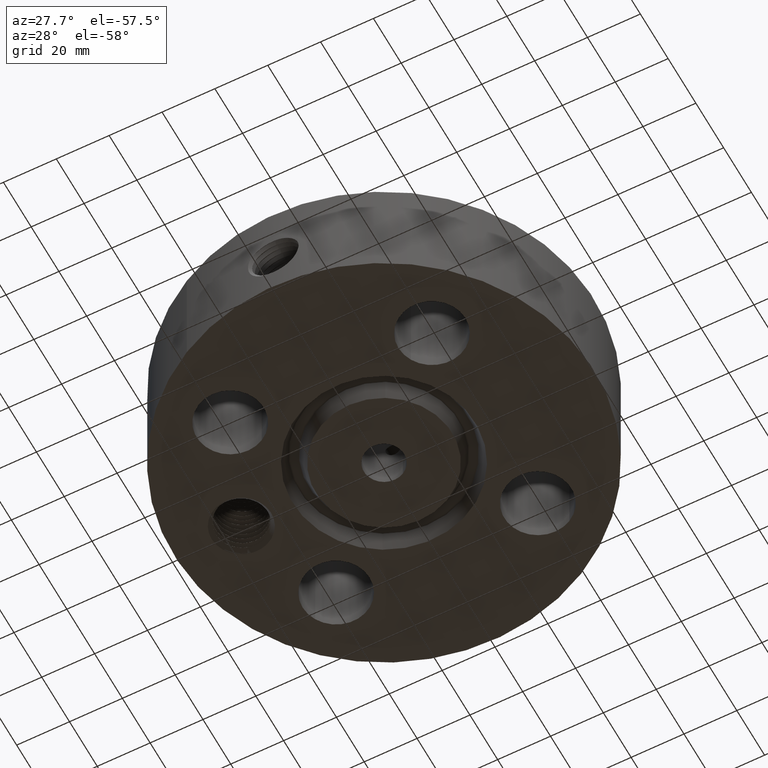
[diagram: clean part render]
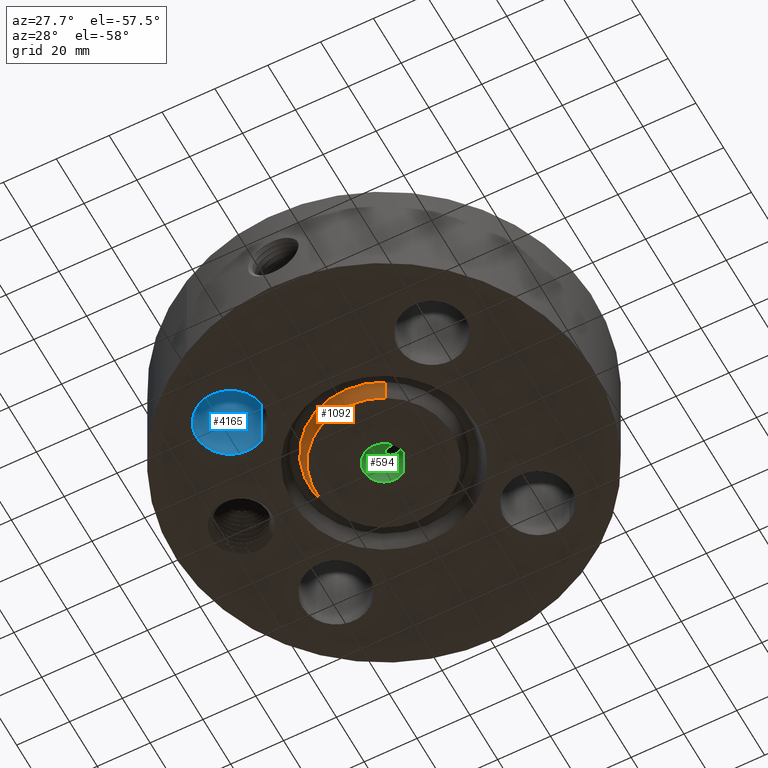
[diagram: same view with three faces highlighted in distinct colors, each labeled with its STEP entity id]
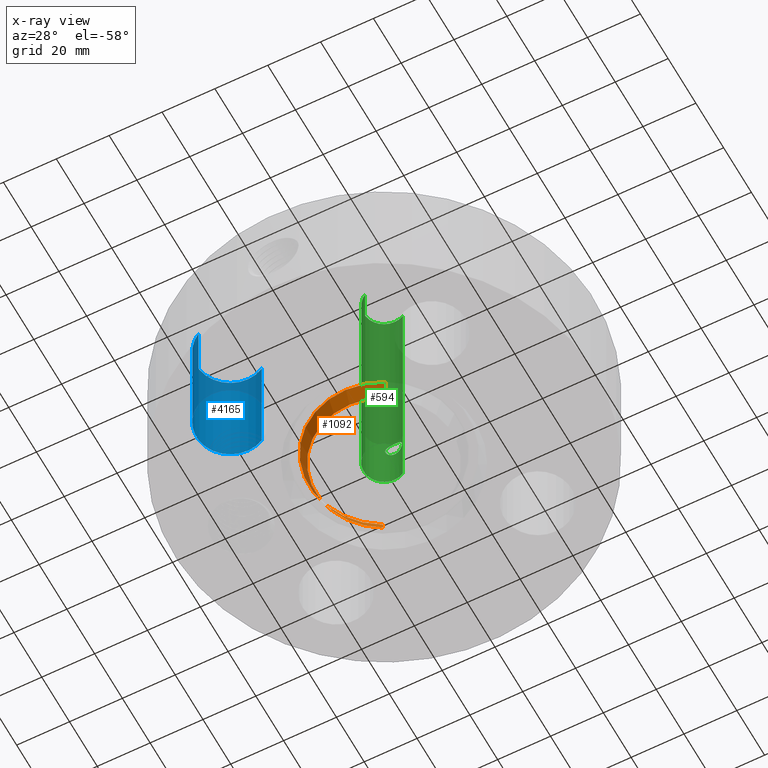
[diagram: x-ray of the same camera — body ghosted, the three highlighted faces saturated]
A machine part, auxiliary view with three faces highlighted in distinct colors.
The next image is the same camera in x-ray (body ghosted, the three faces saturated) — at least one of them is partly hidden behind the body in this view.
Their STEP definitions:

[orange] entity #1092 — the highlighted conical surface has half-angle 23 deg.
#611=AXIS2_PLACEMENT_3D('Circle Axis2P3D',#609,#610,$) ;
#1053=AXIS2_PLACEMENT_3D('Cone Axis2P3D',#1050,#1051,#1052) ;
#1083=AXIS2_PLACEMENT_3D('Circle Axis2P3D',#1081,#1082,$) ;
#604=CARTESIAN_POINT('Vertex',(-0.486856634455,0.891185091603,0.)) ;
#606=CARTESIAN_POINT('Vertex',(0.486856634455,-0.891185091603,0.)) ;
#609=CARTESIAN_POINT('Axis2P3D Location',(-1.39870617276E-016,-3.49676543189E-017,0.)) ;
#1050=CARTESIAN_POINT('Axis2P3D Location',(0.,0.,-0.0600000000002)) ;
#1055=CARTESIAN_POINT('Line Origine',(-0.510434812476,0.934344656971,0.115860966928)) ;
#1059=CARTESIAN_POINT('Vertex',(-0.534012990496,0.977504222339,0.231721933856)) ;
#1066=CARTESIAN_POINT('Vertex',(0.534012990496,-0.977504222339,0.231721933856)) ;
#1069=CARTESIAN_POINT('Line Origine',(0.510434812476,-0.934344656971,0.115860966928)) ;
#1081=CARTESIAN_POINT('Axis2P3D Location',(0.,0.,0.231721933856)) ;
#610=DIRECTION('Axis2P3D Direction',(0.,0.,-0.0393700787402)) ;
#1051=DIRECTION('Axis2P3D Direction',(0.,0.,0.0393700787402)) ;
#1052=DIRECTION('Axis2P3D XDirection',(-0.0188750212049,0.0345504945626,0.)) ;
#1056=DIRECTION('Vector Direction',(-0.00737505833565,0.0134999537303,0.0362403485611)) ;
#1070=DIRECTION('Vector Direction',(0.00737505833565,-0.0134999537303,0.0362403485611)) ;
#1082=DIRECTION('Axis2P3D Direction',(0.,0.,0.0393700787402)) ;
#1057=VECTOR('Line Direction',#1056,0.0393700787402) ;
#1071=VECTOR('Line Direction',#1070,0.0393700787402) ;
#1087=ORIENTED_EDGE('',*,*,#1073,.F.) ;
#1088=ORIENTED_EDGE('',*,*,#1085,.F.) ;
#1089=ORIENTED_EDGE('',*,*,#1061,.T.) ;
#1090=ORIENTED_EDGE('',*,*,#613,.F.) ;
#1092=ADVANCED_FACE('PartBody',(#1091),#1054,.T.) ;
#612=CIRCLE('generated circle',#611,1.0155) ;
#1084=CIRCLE('generated circle',#1083,1.11386012529) ;
#1054=CONICAL_SURFACE('Cone',#1053,0.990031511031,0.401425727959) ;
#613=EDGE_CURVE('',#607,#605,#612,.T.) ;
#1061=EDGE_CURVE('',#1060,#605,#1058,.F.) ;
#1073=EDGE_CURVE('',#1067,#607,#1072,.F.) ;
#1085=EDGE_CURVE('',#1060,#1067,#1084,.T.) ;
#1086=EDGE_LOOP('',(#1087,#1088,#1089,#1090)) ;
#1091=FACE_OUTER_BOUND('',#1086,.T.) ;
#1058=LINE('Line',#1055,#1057) ;
#1072=LINE('Line',#1069,#1071) ;
#605=VERTEX_POINT('',#604) ;
#607=VERTEX_POINT('',#606) ;
#1060=VERTEX_POINT('',#1059) ;
#1067=VERTEX_POINT('',#1066) ;

[blue] entity #4165 — the highlighted cylindrical surface (partial cylindrical patch) has radius 12.7 mm, axis along (0, -0, -1).
#2976=AXIS2_PLACEMENT_3D('Circle Axis2P3D',#2974,#2975,$) ;
#4126=AXIS2_PLACEMENT_3D('Cylinder Axis2P3D',#4123,#4124,#4125) ;
#4156=AXIS2_PLACEMENT_3D('Circle Axis2P3D',#4154,#4155,$) ;
#2974=CARTESIAN_POINT('Axis2P3D Location',(-1.50260191003,-1.50260191003,1.75000000001)) ;
#2978=CARTESIAN_POINT('Vertex',(-1.74231467933,-1.94139319097,1.75000000001)) ;
#2980=CARTESIAN_POINT('Vertex',(-1.26288914072,-1.06381062908,1.75000000001)) ;
#4123=CARTESIAN_POINT('Axis2P3D Location',(-1.50260191003,-1.50260191003,1.74606299213)) ;
#4128=CARTESIAN_POINT('Line Origine',(-1.26288914072,-1.06381062908,0.875000000003)) ;
#4132=CARTESIAN_POINT('Vertex',(-1.26288914072,-1.06381062908,0.)) ;
#4139=CARTESIAN_POINT('Vertex',(-1.74231467933,-1.94139319097,0.)) ;
#4142=CARTESIAN_POINT('Line Origine',(-1.74231467933,-1.94139319097,0.875000000003)) ;
#4154=CARTESIAN_POINT('Axis2P3D Location',(-1.50260191003,-1.50260191003,0.)) ;
#2975=DIRECTION('Axis2P3D Direction',(0.,0.,-0.0393700787402)) ;
#4124=DIRECTION('Axis2P3D Direction',(0.,-0.,-0.0393700787402)) ;
#4125=DIRECTION('Axis2P3D XDirection',(-0.0188750212049,-0.0345504945626,0.)) ;
#4129=DIRECTION('Vector Direction',(0.,0.,-0.0393700787402)) ;
#4143=DIRECTION('Vector Direction',(0.,0.,-0.0393700787402)) ;
#4155=DIRECTION('Axis2P3D Direction',(0.,-0.,-0.0393700787402)) ;
#4130=VECTOR('Line Direction',#4129,0.0393700787402) ;
#4144=VECTOR('Line Direction',#4143,0.0393700787402) ;
#4160=ORIENTED_EDGE('',*,*,#4146,.F.) ;
#4161=ORIENTED_EDGE('',*,*,#4158,.T.) ;
#4162=ORIENTED_EDGE('',*,*,#4134,.T.) ;
#4163=ORIENTED_EDGE('',*,*,#2982,.F.) ;
#4165=ADVANCED_FACE('PartBody',(#4164),#4127,.F.) ;
#2977=CIRCLE('generated circle',#2976,0.500000000002) ;
#4157=CIRCLE('generated circle',#4156,0.500000000002) ;
#4127=CYLINDRICAL_SURFACE('generated cylinder',#4126,0.500000000002) ;
#2982=EDGE_CURVE('',#2979,#2981,#2977,.T.) ;
#4134=EDGE_CURVE('',#4133,#2981,#4131,.F.) ;
#4146=EDGE_CURVE('',#4140,#2979,#4145,.F.) ;
#4158=EDGE_CURVE('',#4140,#4133,#4157,.T.) ;
#4159=EDGE_LOOP('',(#4160,#4161,#4162,#4163)) ;
#4164=FACE_OUTER_BOUND('',#4159,.T.) ;
#4131=LINE('Line',#4128,#4130) ;
#4145=LINE('Line',#4142,#4144) ;
#2979=VERTEX_POINT('',#2978) ;
#2981=VERTEX_POINT('',#2980) ;
#4133=VERTEX_POINT('',#4132) ;
#4140=VERTEX_POINT('',#4139) ;

[green] entity #594 — the highlighted cylindrical surface (edge-blend (fillet) strip) has radius 7.6073 mm, axis along (0, 0, -1).
#232=AXIS2_PLACEMENT_3D('Cylinder Axis2P3D',#229,#230,#231) ;
#533=AXIS2_PLACEMENT_3D('Circle Axis2P3D',#531,#532,$) ;
#543=AXIS2_PLACEMENT_3D('Circle Axis2P3D',#541,#542,$) ;
#229=CARTESIAN_POINT('Axis2P3D Location',(0.,0.,1.93500000001)) ;
#238=CARTESIAN_POINT('Vertex',(0.143587948813,0.262835977287,3.87000000002)) ;
#240=CARTESIAN_POINT('Vertex',(-0.143587948813,-0.262835977287,3.87000000002)) ;
#243=CARTESIAN_POINT('Line Origine',(0.143587948813,0.262835977287,1.93500000001)) ;
#247=CARTESIAN_POINT('Vertex',(0.143587948813,0.262835977287,-5.59482469102E-015)) ;
#254=CARTESIAN_POINT('Vertex',(-0.143587948813,-0.262835977287,-5.59482469102E-015)) ;
#257=CARTESIAN_POINT('Line Origine',(-0.143587948813,-0.262835977287,1.93500000001)) ;
#531=CARTESIAN_POINT('Axis2P3D Location',(0.,0.,3.87000000002)) ;
#541=CARTESIAN_POINT('Axis2P3D Location',(0.,0.,-6.15430716013E-015)) ;
#553=CARTESIAN_POINT('Control Point',(-0.109697820237,0.27868734854,0.690071807677)) ;
#554=CARTESIAN_POINT('Control Point',(-0.0997426920821,0.282605918451,0.671849067822)) ;
#555=CARTESIAN_POINT('Control Point',(-0.0860889660567,0.287466954597,0.655849602408)) ;
#556=CARTESIAN_POINT('Control Point',(-0.0693864207847,0.292296009423,0.642854072798)) ;
#557=CARTESIAN_POINT('Control Point',(-0.0296008179106,0.299925034787,0.623682700526)) ;
#558=CARTESIAN_POINT('Control Point',(0.0153575584245,0.300496051531,0.622757103589)) ;
#559=CARTESIAN_POINT('Control Point',(0.0382924287881,0.298230729722,0.627818238949)) ;
#560=CARTESIAN_POINT('Control Point',(0.0760212985245,0.290868229207,0.645631071313)) ;
#561=CARTESIAN_POINT('Control Point',(0.103381825791,0.281494253502,0.676179530321)) ;
#562=CARTESIAN_POINT('Control Point',(0.113190038741,0.27744286343,0.692183829365)) ;
#563=CARTESIAN_POINT('Control Point',(0.125890866499,0.271826149207,0.725892633362)) ;
#564=CARTESIAN_POINT('Control Point',(0.126168205792,0.27160166412,0.762213438216)) ;
#565=CARTESIAN_POINT('Control Point',(0.1232846964,0.273009152136,0.779275122499)) ;
#566=CARTESIAN_POINT('Control Point',(0.117680296236,0.275545260383,0.795316368023)) ;
#567=CARTESIAN_POINT('Control Point',(0.109697820237,0.27868734854,0.809928192329)) ;
#568=CARTESIAN_POINT('Vertex',(-0.109697820237,0.27868734854,0.690071807677)) ;
#570=CARTESIAN_POINT('Vertex',(0.109697820237,0.27868734854,0.809928192329)) ;
#574=CARTESIAN_POINT('Control Point',(-0.109697820237,0.27868734854,0.690071807677)) ;
#575=CARTESIAN_POINT('Control Point',(-0.119052750986,0.275005030282,0.707195893551)) ;
#576=CARTESIAN_POINT('Control Point',(-0.125141565692,0.272154981826,0.726283186612)) ;
#577=CARTESIAN_POINT('Control Point',(-0.127379754462,0.271016749893,0.746688836917)) ;
#578=CARTESIAN_POINT('Control Point',(-0.123153811524,0.273231024964,0.790088636116)) ;
#579=CARTESIAN_POINT('Control Point',(-0.101926334171,0.282067269229,0.82755424306)) ;
#580=CARTESIAN_POINT('Control Point',(-0.0864426297831,0.287673958917,0.844484399954)) ;
#581=CARTESIAN_POINT('Control Point',(-0.0507121314418,0.296909802022,0.869262609095)) ;
#582=CARTESIAN_POINT('Control Point',(-0.00739098886266,0.300500591955,0.877328105323)) ;
#583=CARTESIAN_POINT('Control Point',(0.013740319322,0.300258568057,0.876788613794)) ;
#584=CARTESIAN_POINT('Control Point',(0.0500295250799,0.296471468883,0.868147971163)) ;
#585=CARTESIAN_POINT('Control Point',(0.0802938379465,0.289006584964,0.847810914567)) ;
#586=CARTESIAN_POINT('Control Point',(0.0921044062989,0.285305985179,0.836762759924)) ;
#587=CARTESIAN_POINT('Control Point',(0.102005316158,0.281715297006,0.824009226594)) ;
#588=CARTESIAN_POINT('Control Point',(0.109697820237,0.27868734854,0.809928192329)) ;
#230=DIRECTION('Axis2P3D Direction',(0.,0.,-0.0393700787402)) ;
#231=DIRECTION('Axis2P3D XDirection',(-0.0188750212049,-0.0345504945626,0.)) ;
#244=DIRECTION('Vector Direction',(0.,0.,-0.0393700787402)) ;
#258=DIRECTION('Vector Direction',(0.,0.,-0.0393700787402)) ;
#532=DIRECTION('Axis2P3D Direction',(0.,0.,-0.0393700787402)) ;
#542=DIRECTION('Axis2P3D Direction',(0.,0.,-0.0393700787402)) ;
#245=VECTOR('Line Direction',#244,0.0393700787402) ;
#259=VECTOR('Line Direction',#258,0.0393700787402) ;
#547=ORIENTED_EDGE('',*,*,#535,.F.) ;
#548=ORIENTED_EDGE('',*,*,#261,.T.) ;
#549=ORIENTED_EDGE('',*,*,#545,.T.) ;
#550=ORIENTED_EDGE('',*,*,#249,.F.) ;
#591=ORIENTED_EDGE('',*,*,#572,.F.) ;
#592=ORIENTED_EDGE('',*,*,#589,.T.) ;
#593=FACE_BOUND('',#590,.T.) ;
#594=ADVANCED_FACE('PartBody',(#551,#593),#233,.F.) ;
#552=B_SPLINE_CURVE_WITH_KNOTS('',5,(#553,#554,#555,#556,#557,#558,#559,#560,#561,#562,#563,#564,#565,#566,#567),.UNSPECIFIED.,.F.,.U.,(6,3,3,3,6),(0.,3.79527346756,7.85564849709,11.2295028748,14.2727263165),.UNSPECIFIED.) ;
#573=B_SPLINE_CURVE_WITH_KNOTS('',5,(#574,#575,#576,#577,#578,#579,#580,#581,#582,#583,#584,#585,#586,#587,#588),.UNSPECIFIED.,.F.,.U.,(6,3,3,3,6),(0.,3.56645538969,7.67660148235,11.3390046366,14.2716797539),.UNSPECIFIED.) ;
#534=CIRCLE('generated circle',#533,0.299500000001) ;
#544=CIRCLE('generated circle',#543,0.299500000001) ;
#233=CYLINDRICAL_SURFACE('generated cylinder',#232,0.299500000001) ;
#249=EDGE_CURVE('',#239,#248,#246,.T.) ;
#261=EDGE_CURVE('',#241,#255,#260,.T.) ;
#535=EDGE_CURVE('',#241,#239,#534,.T.) ;
#545=EDGE_CURVE('',#255,#248,#544,.T.) ;
#572=EDGE_CURVE('',#569,#571,#552,.T.) ;
#589=EDGE_CURVE('',#569,#571,#573,.T.) ;
#546=EDGE_LOOP('',(#547,#548,#549,#550)) ;
#590=EDGE_LOOP('',(#591,#592)) ;
#551=FACE_OUTER_BOUND('',#546,.T.) ;
#246=LINE('Line',#243,#245) ;
#260=LINE('Line',#257,#259) ;
#239=VERTEX_POINT('',#238) ;
#241=VERTEX_POINT('',#240) ;
#248=VERTEX_POINT('',#247) ;
#255=VERTEX_POINT('',#254) ;
#569=VERTEX_POINT('',#568) ;
#571=VERTEX_POINT('',#570) ;